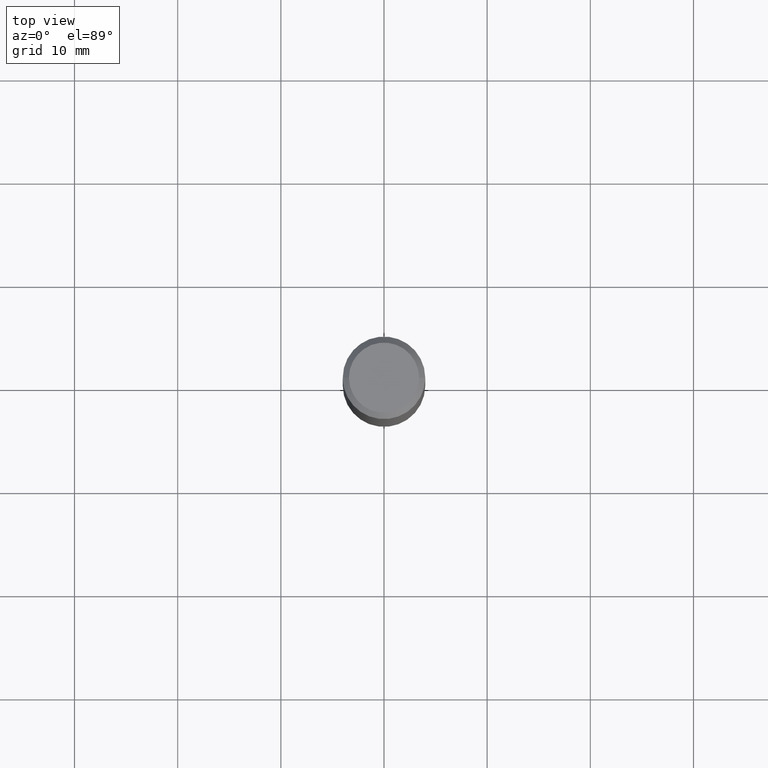
[diagram: clean part render]
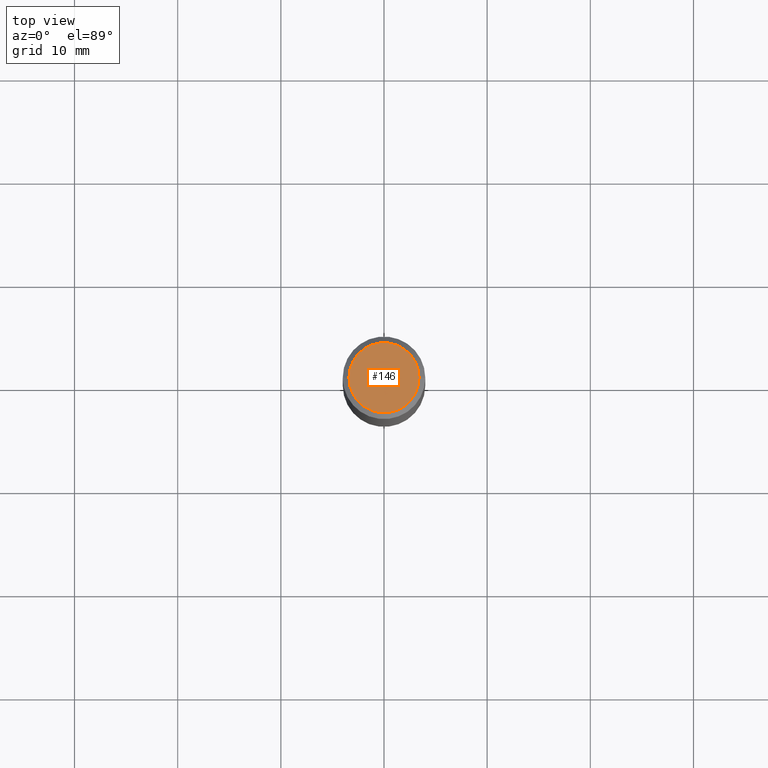
[diagram: same view with one face highlighted and labeled with its STEP entity id]
A machine part, top view. The second image highlights one B-rep face of the part: STEP entity #146.
In plain terms, the highlighted planar face has unit normal (0, -0, -1).
Its self-contained STEP definition (entity closure, byte-faithful):
#32 = FACE_OUTER_BOUND ( 'NONE', #185, .T. ) ;
#61 = DIRECTION ( 'NONE',  ( -1.000000000000000000, 6.982962677686265922E-15, -4.876176775795935793E-29 ) ) ;
#67 = DIRECTION ( 'NONE',  ( -2.445468806185136597E-29, 3.491481338843145583E-15, 1.000000000000000000 ) ) ;
#84 = VERTEX_POINT ( 'NONE', #136 ) ;
#118 = ORIENTED_EDGE ( 'NONE', *, *, #340, .T. ) ;
#130 = CIRCLE ( 'NONE', #388, 0.1338749999999999940 ) ;
#136 = CARTESIAN_POINT ( 'NONE',  ( -0.1338749999999999940, 9.760872517903331886E-16, 4.101342130337800673E-18 ) ) ;
#138 = AXIS2_PLACEMENT_3D ( 'NONE', #213, #381, #61 ) ;
#140 = DIRECTION ( 'NONE',  ( 1.000000000000000000, -6.982962677686266711E-15, 4.876170806578254279E-29 ) ) ;
#146 = ADVANCED_FACE ( 'NONE', ( #32 ), #313, .F. ) ;
#169 = VERTEX_POINT ( 'NONE', #241 ) ;
#185 = EDGE_LOOP ( 'NONE', ( #118, #438 ) ) ;
#196 = AXIS2_PLACEMENT_3D ( 'NONE', #424, #67, #140 ) ;
#202 = CARTESIAN_POINT ( 'NONE',  ( -1.002970424325032604E-46, 1.431975951230895391E-32, 4.101342130344482109E-18 ) ) ;
#213 = CARTESIAN_POINT ( 'NONE',  ( -5.014852121625163022E-47, 7.159879756154476955E-33, 2.050671065172241055E-18 ) ) ;
#241 = CARTESIAN_POINT ( 'NONE',  ( 0.1338749999999999940, -1.040731925365424925E-15, 4.101342130351390035E-18 ) ) ;
#308 = DIRECTION ( 'NONE',  ( 1.000000000000000000, -6.982962677686266711E-15, 4.876170806578254279E-29 ) ) ;
#313 = PLANE ( 'NONE',  #138 ) ;
#340 = EDGE_CURVE ( 'NONE', #84, #169, #130, .T. ) ;
#381 = DIRECTION ( 'NONE',  ( 2.438088387897960049E-29, -3.491481338843145188E-15, -1.000000000000000000 ) ) ;
#388 = AXIS2_PLACEMENT_3D ( 'NONE', #202, #452, #308 ) ;
#424 = CARTESIAN_POINT ( 'NONE',  ( -1.002970424325032604E-46, 1.431975951230895391E-32, 4.101342130344482109E-18 ) ) ;
#433 = EDGE_CURVE ( 'NONE', #169, #84, #458, .T. ) ;
#438 = ORIENTED_EDGE ( 'NONE', *, *, #433, .T. ) ;
#452 = DIRECTION ( 'NONE',  ( -2.445468806185136597E-29, 3.491481338843145583E-15, 1.000000000000000000 ) ) ;
#458 = CIRCLE ( 'NONE', #196, 0.1338749999999999940 ) ;